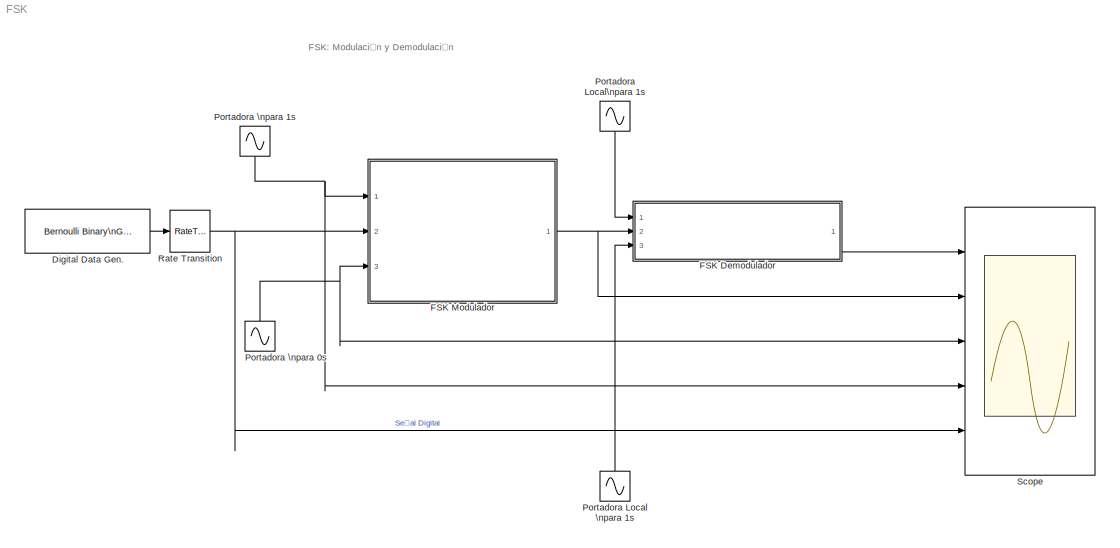
MODEL FSK
KIND model
BLOCK [Reference] Digital Data Gen.  REF=commrandsrc2/Bernoulli Binary\nGenerator
  P = 0.5
  Ports = [0, 1]
  SID = 4
  SourceBlock = commrandsrc2/Bernoulli Binary\nGenerator
  SourceType = Bernoulli Binary Generator
  Ts = 5
  frameBased = off
  orient = off
  outDataType = double
  sampPerFrame = 1
  seed = 61
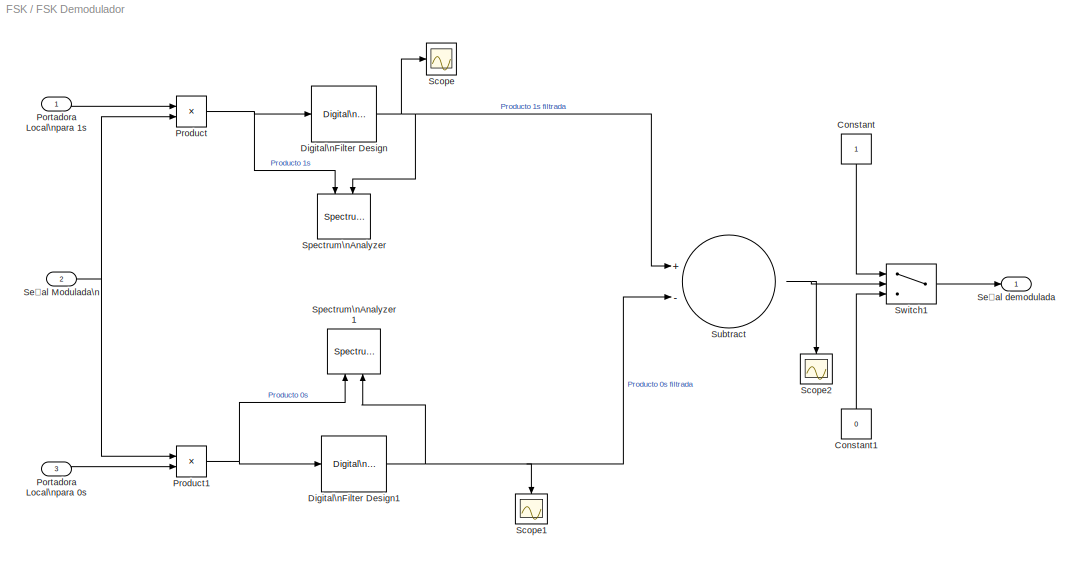
BLOCK [SubSystem] FSK Demodulador
  Ports = [3, 1]
  RequestExecContextInheritance = off
  SID = 29
  Variant = off
BLOCK [Constant] FSK Demodulador/Constant
  SID = 15
BLOCK [Constant] FSK Demodulador/Constant1
  SID = 16
  Value = 0
BLOCK [Reference] FSK Demodulador/Digital\nFilter Design  REF=dsparch4/Digital\nFilter Design
  Ports = [1, 1]
  SID = 39
  SourceBlock = dsparch4/Digital\nFilter Design
  SourceProductBaseCode = DS
  SourceProductName = DSP System Toolbox
  SourceType = Digital Filter Design
  UserData = DataTag0
  UserDataPersistent = on
  mwdsp_browser_bugfix_var = off
BLOCK [Reference] FSK Demodulador/Digital\nFilter Design1  REF=dsparch4/Digital\nFilter Design
  Ports = [1, 1]
  SID = 40
  SourceBlock = dsparch4/Digital\nFilter Design
  SourceProductBaseCode = DS
  SourceProductName = DSP System Toolbox
  SourceType = Digital Filter Design
  UserData = DataTag1
  UserDataPersistent = on
  mwdsp_browser_bugfix_var = off
BLOCK [Inport] FSK Demodulador/Portadora Local\npara 0s
  IconDisplay = Port number
  Port = 3
  SID = 35
BLOCK [Inport] FSK Demodulador/Portadora Local\npara 1s
  IconDisplay = Port number
  SID = 34
BLOCK [Product] FSK Demodulador/Product
  InputSameDT = off
  OutDataTypeStr = Inherit: Inherit via internal rule
  Ports = [2, 1]
  RndMeth = Floor
  SID = 7
  SaturateOnIntegerOverflow = off
BLOCK [Product] FSK Demodulador/Product1
  InputSameDT = off
  OutDataTypeStr = Inherit: Inherit via internal rule
  Ports = [2, 1]
  RndMeth = Floor
  SID = 8
  SaturateOnIntegerOverflow = off
BLOCK [Scope] FSK Demodulador/Scope
  NumInputPorts = 1
  Ports = [1]
  SID = 38
  ScopeSpecificationString = Simulink.scopes.TimeScopeBlockCfg('CurrentConfiguration', extmgr.ConfigurationSet(extmgr.Configuration('Core','General UI',true),extmgr.Configuration('Core','Source UI',true),extmgr.Configuration('Sources','WiredSimulink',true,'DataLoggingVariableName','ScopeData1'),extmgr.Configuration('Visuals','Time Domain',true,'SerializedDisplays',{struct('MinYLimReal','-22.88933','MaxYLimReal','30.22642','YL...<+1458ch>
BLOCK [Scope] FSK Demodulador/Scope1
  NumInputPorts = 1
  Ports = [1]
  SID = 44
  ScopeSpecificationString = Simulink.scopes.TimeScopeBlockCfg('CurrentConfiguration', extmgr.ConfigurationSet(extmgr.Configuration('Core','General UI',true),extmgr.Configuration('Core','Source UI',true),extmgr.Configuration('Sources','WiredSimulink',true,'DataLoggingVariableName','ScopeData2'),extmgr.Configuration('Visuals','Time Domain',true,'SerializedDisplays',{struct('MinYLimReal','-22.88933','MaxYLimReal','30.22642','YL...<+1459ch>
BLOCK [Scope] FSK Demodulador/Scope2
  NumInputPorts = 1
  Ports = [1]
  SID = 45
  ScopeSpecificationString = Simulink.scopes.TimeScopeBlockCfg('CurrentConfiguration', extmgr.ConfigurationSet(extmgr.Configuration('Core','General UI',true),extmgr.Configuration('Core','Source UI',true),extmgr.Configuration('Sources','WiredSimulink',true,'DataLoggingVariableName','ScopeData3'),extmgr.Configuration('Visuals','Time Domain',true,'SerializedDisplays',{struct('MinYLimReal','-22.88933','MaxYLimReal','30.22642','YL...<+1446ch>
BLOCK [Inport] FSK Demodulador/Señal Modulada\n
  IconDisplay = Port number
  Port = 2
  SID = 30
BLOCK [Outport] FSK Demodulador/Señal demodulada
  IconDisplay = Port number
  SID = 31
BLOCK [SpectrumAnalyzer] FSK Demodulador/Spectrum\nAnalyzer
  NumInputPorts = 2
  Ports = [2]
  SID = 43
  ScopeSpecificationString = spbscopes.SpectrumAnalyzerBlockCfg('CurrentConfiguration', extmgr.ConfigurationSet(extmgr.Configuration('Core','General UI',true),extmgr.Configuration('Core','Source UI',true),extmgr.Configuration('Sources','WiredSimulink',true),extmgr.Configuration('Sources','SimulinkEvent',false),extmgr.Configuration('Sources','Simulink',false),extmgr.Configuration('Sources','File',false),extmgr.Configuration('S...<+3529ch>
BLOCK [SpectrumAnalyzer] FSK Demodulador/Spectrum\nAnalyzer1
  NumInputPorts = 2
  Ports = [2]
  SID = 46
  ScopeSpecificationString = spbscopes.SpectrumAnalyzerBlockCfg('CurrentConfiguration', extmgr.ConfigurationSet(extmgr.Configuration('Core','General UI',true),extmgr.Configuration('Core','Source UI',true),extmgr.Configuration('Sources','WiredSimulink',true),extmgr.Configuration('Sources','SimulinkEvent',false),extmgr.Configuration('Sources','Simulink',false),extmgr.Configuration('Sources','File',false),extmgr.Configuration('S...<+3531ch>
BLOCK [Sum] FSK Demodulador/Subtract
  InputSameDT = off
  Inputs = +-
  OutDataTypeStr = Inherit: Inherit via internal rule
  Ports = [2, 1]
  SID = 13
  SaturateOnIntegerOverflow = off
BLOCK [Switch] FSK Demodulador/Switch1
  Criteria = u2 > Threshold
  InputSameDT = off
  SID = 14
  SaturateOnIntegerOverflow = off
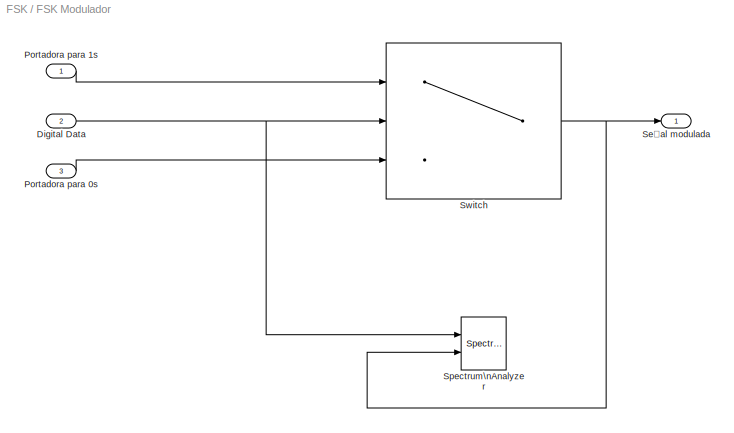
BLOCK [SubSystem] FSK Modulador
  Ports = [3, 1]
  RequestExecContextInheritance = off
  SID = 18
  Variant = off
BLOCK [Inport] FSK Modulador/Digital Data
  IconDisplay = Port number
  Port = 2
  SID = 20
BLOCK [Inport] FSK Modulador/Portadora para 0s
  IconDisplay = Port number
  Port = 3
  SID = 21
BLOCK [Inport] FSK Modulador/Portadora para 1s
  IconDisplay = Port number
  SID = 19
BLOCK [Outport] FSK Modulador/Señal modulada
  IconDisplay = Port number
  SID = 22
BLOCK [SpectrumAnalyzer] FSK Modulador/Spectrum\nAnalyzer
  NumInputPorts = 2
  Ports = [2]
  SID = 36
  ScopeSpecificationString = spbscopes.SpectrumAnalyzerBlockCfg('CurrentConfiguration', extmgr.ConfigurationSet(extmgr.Configuration('Core','General UI',true),extmgr.Configuration('Core','Source UI',true),extmgr.Configuration('Sources','WiredSimulink',true),extmgr.Configuration('Sources','SimulinkEvent',false),extmgr.Configuration('Sources','Simulink',false),extmgr.Configuration('Sources','File',false),extmgr.Configuration('S...<+3531ch>
BLOCK [Switch] FSK Modulador/Switch
  InputSameDT = off
  SID = 2
  SaturateOnIntegerOverflow = off
  Threshold = 0.5
BLOCK [Sin] Portadora Local \npara 1s
  Amplitude = 5
  Frequency = 20*2*pi
  Ports = [0, 1]
  SID = 42
  SampleTime = 1/2000
  Samples = 50
BLOCK [Sin] Portadora Local\npara 1s
  Amplitude = 5
  Frequency = 10*2*pi
  Ports = [0, 1]
  SID = 41
  SampleTime = 1/2000
  Samples = 20
BLOCK [Sin] Portadora \npara 0s
  Amplitude = 5
  Frequency = 20*2*pi
  Ports = [0, 1]
  SID = 3
  SampleTime = 1/2000
  Samples = 50
BLOCK [Sin] Portadora \npara 1s
  Amplitude = 5
  Frequency = 10*2*pi
  Ports = [0, 1]
  SID = 1
  SampleTime = 1/2000
  Samples = 20
BLOCK [RateTransition] Rate Transition
  OutPortSampleTime = 1/2000
  SID = 33
BLOCK [Scope] Scope
  NumInputPorts = 5
  Ports = [5]
  SID = 17
  ScopeSpecificationString = Simulink.scopes.TimeScopeBlockCfg('CurrentConfiguration', extmgr.ConfigurationSet(extmgr.Configuration('Core','General UI',true),extmgr.Configuration('Core','Source UI',true),extmgr.Configuration('Sources','WiredSimulink',true,'DataLoggingSaveFormat','StructureWithTime','DataLoggingDecimation','1','DataLoggingDecimateData',true),extmgr.Configuration('Visuals','Time Domain',true,'SerializedDisplays...<+4303ch>
ANNOTATION (root): FSK: Modulación y Demodulación
LINE Digital Data Gen.:1 -> Rate Transition:1
LINE FSK Demodulador/Constant1:1 -> FSK Demodulador/Switch1:3
LINE FSK Demodulador/Constant:1 -> FSK Demodulador/Switch1:1
NET FSK Demodulador/Digital\nFilter Design1:1 -> FSK Demodulador/Scope1:1, FSK Demodulador/Spectrum\nAnalyzer1:2, FSK Demodulador/Subtract:2
NET FSK Demodulador/Digital\nFilter Design:1 -> FSK Demodulador/Scope:1, FSK Demodulador/Spectrum\nAnalyzer:2, FSK Demodulador/Subtract:1
LINE FSK Demodulador/Portadora Local\npara 0s:1 -> FSK Demodulador/Product1:2
LINE FSK Demodulador/Portadora Local\npara 1s:1 -> FSK Demodulador/Product:1
NET FSK Demodulador/Product1:1 -> FSK Demodulador/Digital\nFilter Design1:1, FSK Demodulador/Spectrum\nAnalyzer1:1
NET FSK Demodulador/Product:1 -> FSK Demodulador/Digital\nFilter Design:1, FSK Demodulador/Spectrum\nAnalyzer:1
NET FSK Demodulador/Señal Modulada\n:1 -> FSK Demodulador/Product1:1, FSK Demodulador/Product:2
NET FSK Demodulador/Subtract:1 -> FSK Demodulador/Scope2:1, FSK Demodulador/Switch1:2
LINE FSK Demodulador/Switch1:1 -> FSK Demodulador/Señal demodulada:1
LINE FSK Demodulador:1 -> Scope:1
NET FSK Modulador/Digital Data:1 -> FSK Modulador/Spectrum\nAnalyzer:1, FSK Modulador/Switch:2
LINE FSK Modulador/Portadora para 0s:1 -> FSK Modulador/Switch:3
LINE FSK Modulador/Portadora para 1s:1 -> FSK Modulador/Switch:1
NET FSK Modulador/Switch:1 -> FSK Modulador/Señal modulada:1, FSK Modulador/Spectrum\nAnalyzer:2
NET FSK Modulador:1 -> FSK Demodulador:2, Scope:2
LINE Portadora Local \npara 1s:1 -> FSK Demodulador:3
LINE Portadora Local\npara 1s:1 -> FSK Demodulador:1
NET Portadora \npara 0s:1 -> FSK Modulador:3, Scope:3
NET Portadora \npara 1s:1 -> FSK Modulador:1, Scope:4
NET Rate Transition:1 -> FSK Modulador:2, Scope:5
note: NET lines group one-source signal fan-out (src -> all destinations, sorted); 1:1 wires keep LINE
